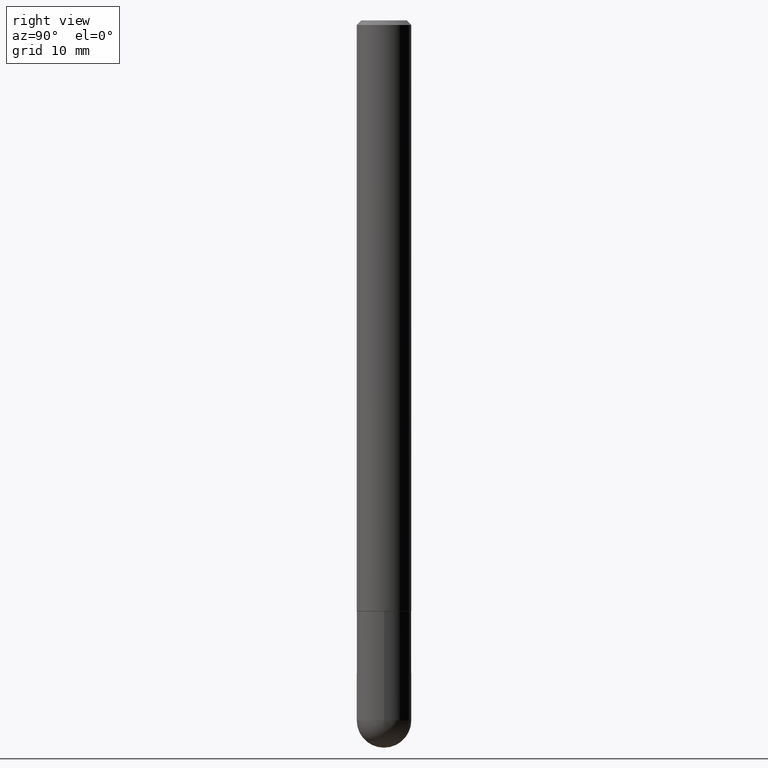
[diagram: clean part render]
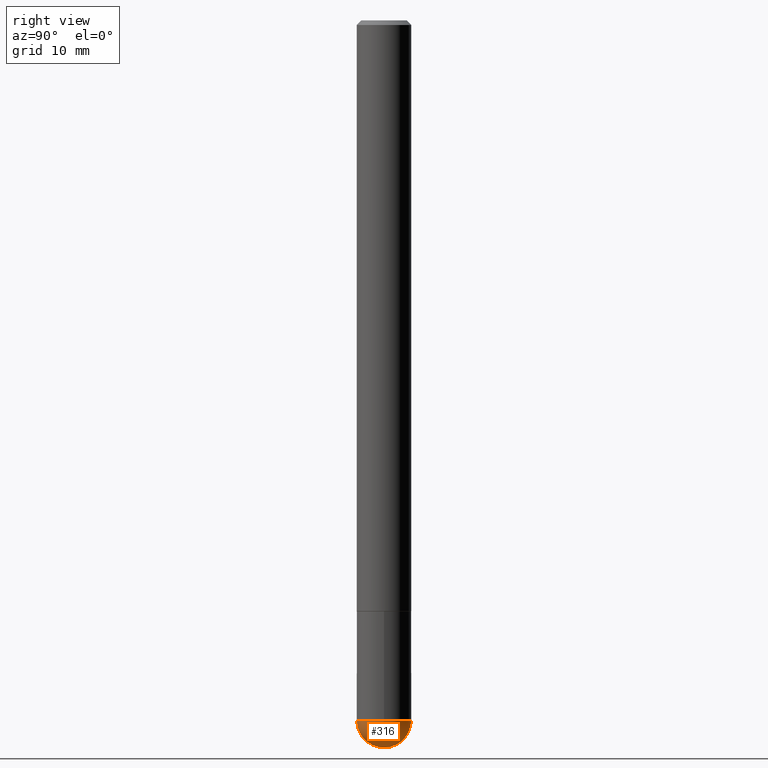
[diagram: same view with one face highlighted and labeled with its STEP entity id]
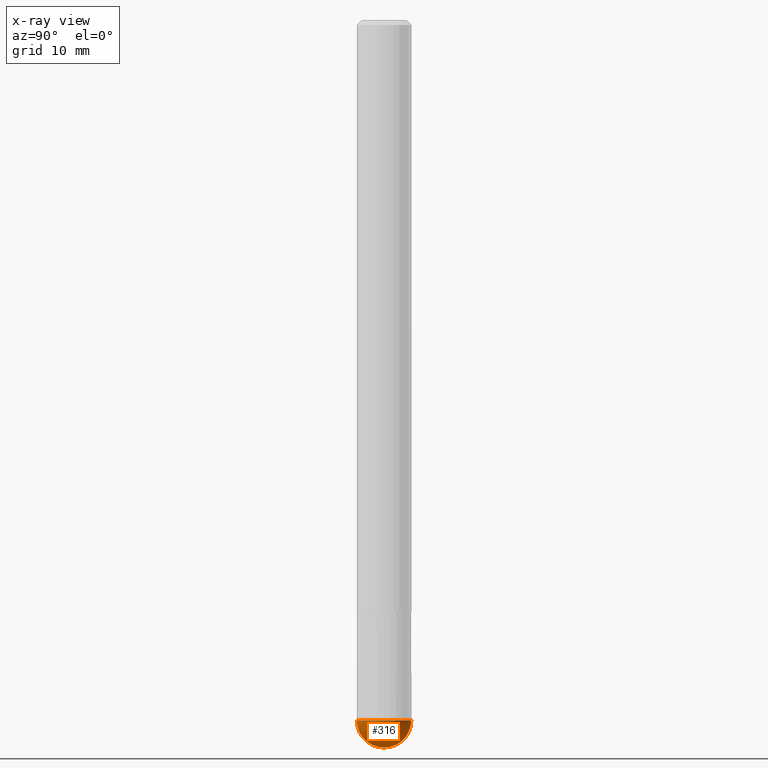
[diagram: x-ray of the same camera — body ghosted, the highlighted face saturated]
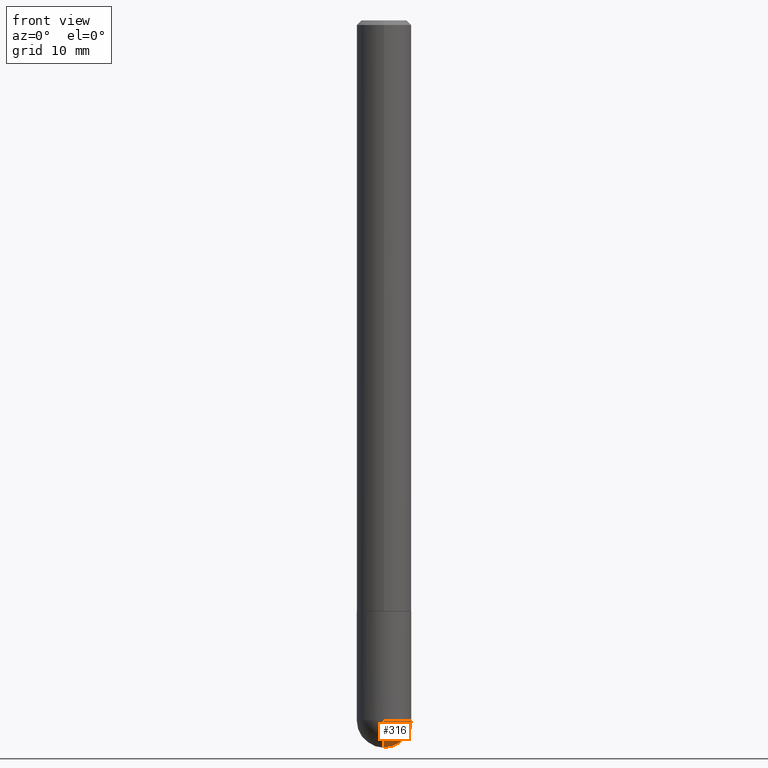
[diagram: same view with one face highlighted and labeled with its STEP entity id]
A machine part, right view. The second image highlights one B-rep face of the part: STEP entity #316.
The next image is the same camera in x-ray: the body ghosted, the highlighted face saturated — about 0% of this face is hidden behind the body in this view.
A second angle (front view) of the same face is appended — the face is thin or edge-on in the first view.
In plain terms, the highlighted spherical surface has radius 2.9997 mm.
Its self-contained STEP definition (entity closure, byte-faithful):
#1 = CARTESIAN_POINT ( 'NONE',  ( -8.391509709326067066E-16, -0.1181000000000109740, -3.031499999999998973 ) ) ;
#13 = EDGE_CURVE ( 'NONE', #239, #385, #41, .T. ) ;
#21 = AXIS2_PLACEMENT_3D ( 'NONE', #244, #284, #176 ) ;
#24 = DIRECTION ( 'NONE',  ( 6.982962677686265922E-15, 1.000000000000000000, -4.626330217890359081E-15 ) ) ;
#36 = CARTESIAN_POINT ( 'NONE',  ( 7.082318908036356584E-29, -1.105860804684304690E-14, -3.031500000000000306 ) ) ;
#41 = CIRCLE ( 'NONE', #21, 0.1181000000000000383 ) ;
#54 = DIRECTION ( 'NONE',  ( -2.445468806185136597E-29, 3.491481338843145583E-15, 1.000000000000000000 ) ) ;
#70 = SPHERICAL_SURFACE ( 'NONE', #141, 0.1181000000000002742 ) ;
#77 = CARTESIAN_POINT ( 'NONE',  ( 7.082318908036356584E-29, -1.105860804684304690E-14, -3.031500000000000306 ) ) ;
#79 = AXIS2_PLACEMENT_3D ( 'NONE', #36, #290, #161 ) ;
#86 = EDGE_CURVE ( 'NONE', #234, #239, #293, .T. ) ;
#97 = VERTEX_POINT ( 'NONE', #116 ) ;
#111 = AXIS2_PLACEMENT_3D ( 'NONE', #167, #400, #208 ) ;
#113 = CARTESIAN_POINT ( 'NONE',  ( 7.413438685950241710E-29, -1.058442567870299344E-14, -3.031499999999999417 ) ) ;
#116 = CARTESIAN_POINT ( 'NONE',  ( 7.376178530984425849E-29, -1.146372045361145882E-14, -3.149600000000000399 ) ) ;
#129 = ORIENTED_EDGE ( 'NONE', *, *, #13, .F. ) ;
#141 = AXIS2_PLACEMENT_3D ( 'NONE', #77, #327, #24 ) ;
#161 = DIRECTION ( 'NONE',  ( -7.105427357601001070E-15, -1.000000000000000000, 0.000000000000000000 ) ) ;
#167 = CARTESIAN_POINT ( 'NONE',  ( 7.082318908036356584E-29, -1.105860804684304690E-14, -3.031500000000000306 ) ) ;
#171 = DIRECTION ( 'NONE',  ( 1.000000000000000000, -6.982962677686270655E-15, 0.000000000000000000 ) ) ;
#176 = DIRECTION ( 'NONE',  ( 1.000000000000000000, -6.982962677686270655E-15, 0.000000000000000000 ) ) ;
#188 = ORIENTED_EDGE ( 'NONE', *, *, #369, .T. ) ;
#194 = FACE_OUTER_BOUND ( 'NONE', #357, .T. ) ;
#208 = DIRECTION ( 'NONE',  ( 6.982962677686265922E-15, 1.000000000000000000, 0.000000000000000000 ) ) ;
#234 = VERTEX_POINT ( 'NONE', #1 ) ;
#239 = VERTEX_POINT ( 'NONE', #386 ) ;
#244 = CARTESIAN_POINT ( 'NONE',  ( 7.413438685950241710E-29, -1.058442567870299344E-14, -3.031499999999999417 ) ) ;
#264 = CIRCLE ( 'NONE', #79, 0.1181000000000002742 ) ;
#272 = CARTESIAN_POINT ( 'NONE',  ( 8.246878922348216267E-16, 0.1180999999999893246, -3.031500000000000306 ) ) ;
#284 = DIRECTION ( 'NONE',  ( -2.445468806185136597E-29, 3.491481338843145583E-15, 1.000000000000000000 ) ) ;
#289 = EDGE_CURVE ( 'NONE', #97, #234, #264, .T. ) ;
#290 = DIRECTION ( 'NONE',  ( -1.000000000000000000, 7.105427357601001070E-15, -4.926315508542082329E-29 ) ) ;
#293 = CIRCLE ( 'NONE', #349, 0.1181000000000000383 ) ;
#316 = ADVANCED_FACE ( 'NONE', ( #194 ), #70, .T. ) ;
#325 = ORIENTED_EDGE ( 'NONE', *, *, #86, .F. ) ;
#327 = DIRECTION ( 'NONE',  ( -1.000000000000000000, 6.982962677686265922E-15, -4.883557194083112340E-29 ) ) ;
#344 = ORIENTED_EDGE ( 'NONE', *, *, #289, .F. ) ;
#349 = AXIS2_PLACEMENT_3D ( 'NONE', #113, #54, #171 ) ;
#357 = EDGE_LOOP ( 'NONE', ( #344, #188, #129, #325 ) ) ;
#369 = EDGE_CURVE ( 'NONE', #97, #385, #383, .T. ) ;
#383 = CIRCLE ( 'NONE', #111, 0.1181000000000002742 ) ;
#385 = VERTEX_POINT ( 'NONE', #272 ) ;
#386 = CARTESIAN_POINT ( 'NONE',  ( 0.1181000000000000383, -1.058425110463605090E-14, -3.031499999999999417 ) ) ;
#400 = DIRECTION ( 'NONE',  ( 1.000000000000000000, -6.982962677686265922E-15, 4.883557194083112340E-29 ) ) ;